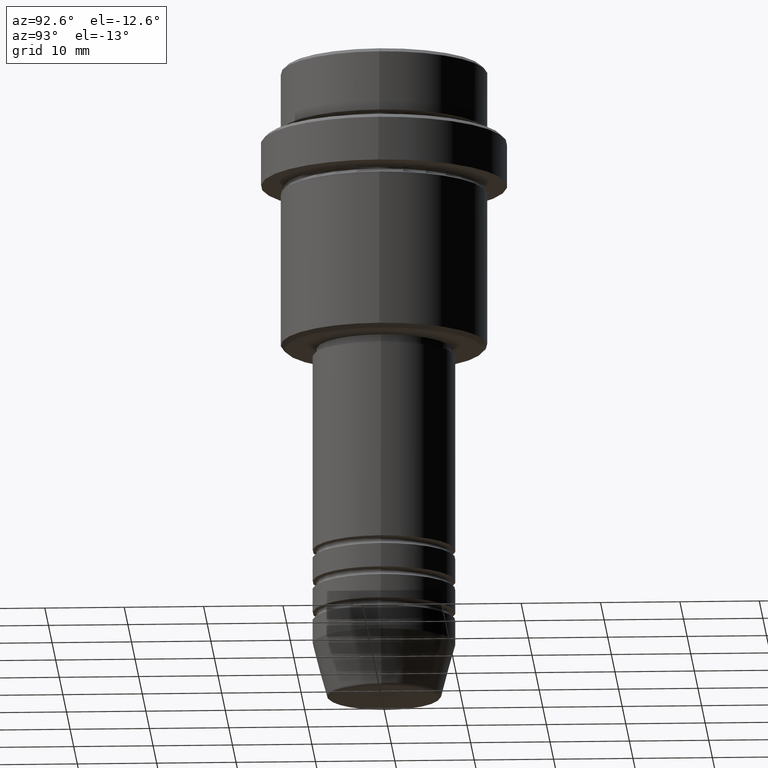
[diagram: clean part render]
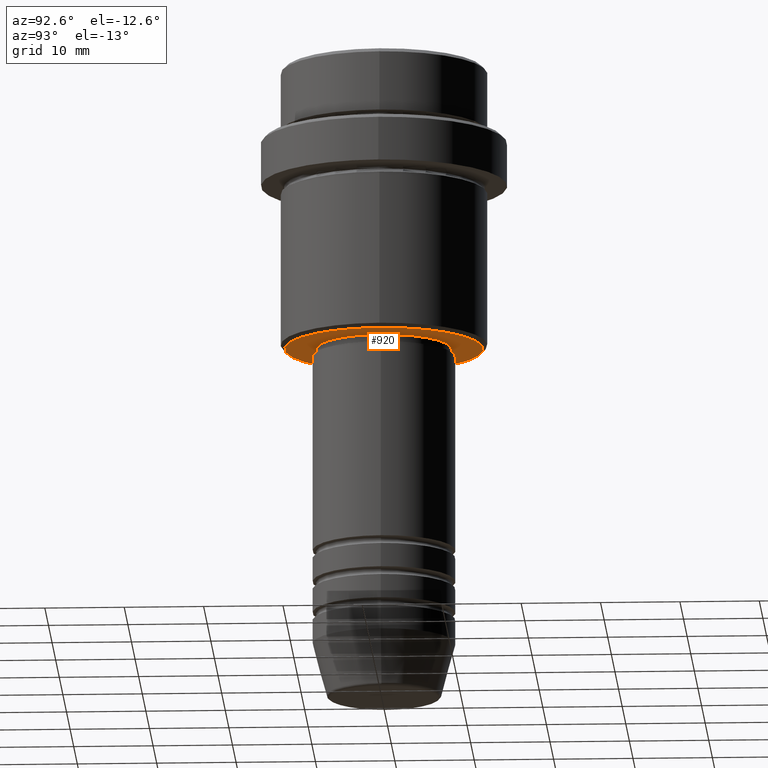
[diagram: same view with one face highlighted and labeled with its STEP entity id]
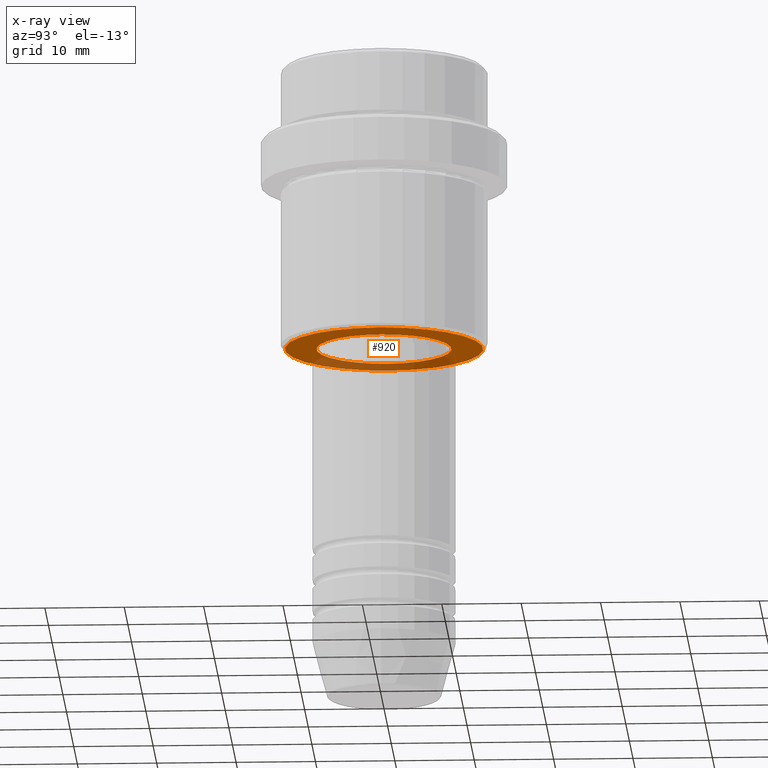
[diagram: x-ray of the same camera — body ghosted, the highlighted face saturated]
A machine part, auxiliary view. The second image highlights one B-rep face of the part: STEP entity #920.
The next image is the same camera in x-ray: the body ghosted, the highlighted face saturated — about 29% of this face is hidden behind the body in this view.
In plain terms, the highlighted planar face has unit normal (0, 0, -1).
Its self-contained STEP definition (entity closure, byte-faithful):
#59 = DIRECTION ( 'NONE',  ( 0.000000000000000000, 0.000000000000000000, -1.000000000000000000 ) ) ;
#65 = AXIS2_PLACEMENT_3D ( 'NONE', #939, #59, #497 ) ;
#72 = PLANE ( 'NONE',  #161 ) ;
#161 = AXIS2_PLACEMENT_3D ( 'NONE', #282, #1387, #716 ) ;
#207 = DIRECTION ( 'NONE',  ( -0.000000000000000000, -0.000000000000000000, 1.000000000000000000 ) ) ;
#248 = AXIS2_PLACEMENT_3D ( 'NONE', #1172, #207, #1178 ) ;
#282 = CARTESIAN_POINT ( 'NONE',  ( 0.000000000000000000, 13.00000000000000000, -36.00000000000000000 ) ) ;
#317 = DIRECTION ( 'NONE',  ( -0.000000000000000000, -0.000000000000000000, 1.000000000000000000 ) ) ;
#319 = CIRCLE ( 'NONE', #65, 12.49999999999996980 ) ;
#335 = CIRCLE ( 'NONE', #248, 8.499999999999994671 ) ;
#344 = ORIENTED_EDGE ( 'NONE', *, *, #1312, .T. ) ;
#368 = AXIS2_PLACEMENT_3D ( 'NONE', #646, #1076, #534 ) ;
#424 = VERTEX_POINT ( 'NONE', #1052 ) ;
#426 = CARTESIAN_POINT ( 'NONE',  ( 8.499999999999994671, 0.000000000000000000, -36.00000000000000000 ) ) ;
#497 = DIRECTION ( 'NONE',  ( -1.000000000000000000, 0.000000000000000000, 0.000000000000000000 ) ) ;
#516 = VERTEX_POINT ( 'NONE', #426 ) ;
#520 = FACE_OUTER_BOUND ( 'NONE', #1236, .T. ) ;
#534 = DIRECTION ( 'NONE',  ( -1.000000000000000000, 0.000000000000000000, 0.000000000000000000 ) ) ;
#541 = EDGE_CURVE ( 'NONE', #950, #516, #335, .T. ) ;
#572 = EDGE_LOOP ( 'NONE', ( #344, #1127 ) ) ;
#599 = CIRCLE ( 'NONE', #368, 12.49999999999996980 ) ;
#646 = CARTESIAN_POINT ( 'NONE',  ( 0.000000000000000000, 0.000000000000000000, -36.00000000000000000 ) ) ;
#712 = CIRCLE ( 'NONE', #1321, 8.499999999999994671 ) ;
#716 = DIRECTION ( 'NONE',  ( -1.000000000000000000, 0.000000000000000000, -0.000000000000000000 ) ) ;
#747 = EDGE_CURVE ( 'NONE', #424, #913, #319, .T. ) ;
#773 = ORIENTED_EDGE ( 'NONE', *, *, #747, .T. ) ;
#913 = VERTEX_POINT ( 'NONE', #1173 ) ;
#920 = ADVANCED_FACE ( 'NONE', ( #520, #1259 ), #72, .T. ) ;
#939 = CARTESIAN_POINT ( 'NONE',  ( 0.000000000000000000, 0.000000000000000000, -36.00000000000000000 ) ) ;
#950 = VERTEX_POINT ( 'NONE', #1305 ) ;
#1036 = EDGE_CURVE ( 'NONE', #913, #424, #599, .T. ) ;
#1052 = CARTESIAN_POINT ( 'NONE',  ( -12.49999999999996980, 1.561424668912873336E-15, -36.00000000000000000 ) ) ;
#1076 = DIRECTION ( 'NONE',  ( 0.000000000000000000, 0.000000000000000000, -1.000000000000000000 ) ) ;
#1127 = ORIENTED_EDGE ( 'NONE', *, *, #541, .T. ) ;
#1172 = CARTESIAN_POINT ( 'NONE',  ( 0.000000000000000000, 0.000000000000000000, -36.00000000000000000 ) ) ;
#1173 = CARTESIAN_POINT ( 'NONE',  ( 12.49999999999996980, 0.000000000000000000, -36.00000000000000000 ) ) ;
#1178 = DIRECTION ( 'NONE',  ( 1.000000000000000000, 0.000000000000000000, 0.000000000000000000 ) ) ;
#1185 = DIRECTION ( 'NONE',  ( 1.000000000000000000, 0.000000000000000000, 0.000000000000000000 ) ) ;
#1191 = ORIENTED_EDGE ( 'NONE', *, *, #1036, .T. ) ;
#1236 = EDGE_LOOP ( 'NONE', ( #1191, #773 ) ) ;
#1259 = FACE_BOUND ( 'NONE', #572, .T. ) ;
#1292 = CARTESIAN_POINT ( 'NONE',  ( 0.000000000000000000, 0.000000000000000000, -36.00000000000000000 ) ) ;
#1305 = CARTESIAN_POINT ( 'NONE',  ( -8.499999999999994671, 1.040949779275249745E-15, -36.00000000000000000 ) ) ;
#1312 = EDGE_CURVE ( 'NONE', #516, #950, #712, .T. ) ;
#1321 = AXIS2_PLACEMENT_3D ( 'NONE', #1292, #317, #1185 ) ;
#1387 = DIRECTION ( 'NONE',  ( 0.000000000000000000, 0.000000000000000000, -1.000000000000000000 ) ) ;